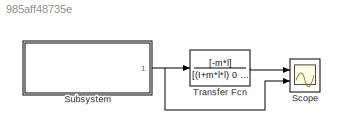
MODEL slx_985aff48735e
KIND model
CONFIG AbsTol = auto
CONFIG EnableMultiTasking = off
CONFIG FixedStep = auto
CONFIG MaxStep = auto
CONFIG MinStep = auto
CONFIG RelTol = 1e-3
CONFIG SampleTimeConstraint = Unconstrained
CONFIG SolverName = VariableStepAuto
CONFIG StartTime = 0.0
CONFIG StopTime = 20
BLOCK [Scope] Scope
  Floating = off
  NumInputPorts = 2
  Ports = [2]
  ScopeSpecificationString = Simulink.scopes.TimeScopeBlockCfg('CurrentConfiguration', extmgr.ConfigurationSet(extmgr.Configuration('Core','General UI',true),extmgr.Configuration('Core','Source UI',true),extmgr.Configuration('Sources','WiredSimulink',true,'SampleTime','0.005'),extmgr.Configuration('Visuals','Time Domain',true,'SerializedDisplays',{struct('MinYLimReal','-1.25','MaxYLimReal','1.25','YLabelReal','','MinYLimMag',...<+1377ch>
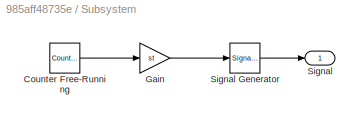
BLOCK [SubSystem] Subsystem
  Ports = [0, 1]
  RequestExecContextInheritance = off
BLOCK [Reference] Subsystem/Counter Free-Running  REF=simulink/Sources/Counter
Free-Running
  Ports = [0, 1]
  SourceBlock = simulink/Sources/Counter\nFree-Running
  SourceProductBaseCode = SL
  SourceType = Counter Free-Running
BLOCK [Gain] Subsystem/Gain
  Gain = st
  OutDataTypeStr = double
BLOCK [Outport] Subsystem/Signal
BLOCK [SignalGenerator] Subsystem/Signal Generator
  Amplitude = amp
  Frequency = freq
  Ports = [1, 1]
  TimeSource = Use external signal
  WaveForm = square
BLOCK [TransferFcn] Transfer Fcn
  Denominator = [(I+m*l*l) 0 m*g*l]
  Numerator = [-m*l]
LINE Subsystem/Counter Free-Running:1 -> Subsystem/Gain:1
LINE Subsystem/Gain:1 -> Subsystem/Signal Generator:1
LINE Subsystem/Signal Generator:1 -> Subsystem/Signal:1
NET Subsystem:1 -> Scope:2, Transfer Fcn:1
LINE Transfer Fcn:1 -> Scope:1
note: NET lines group one-source signal fan-out (src -> all destinations, sorted); 1:1 wires keep LINE
